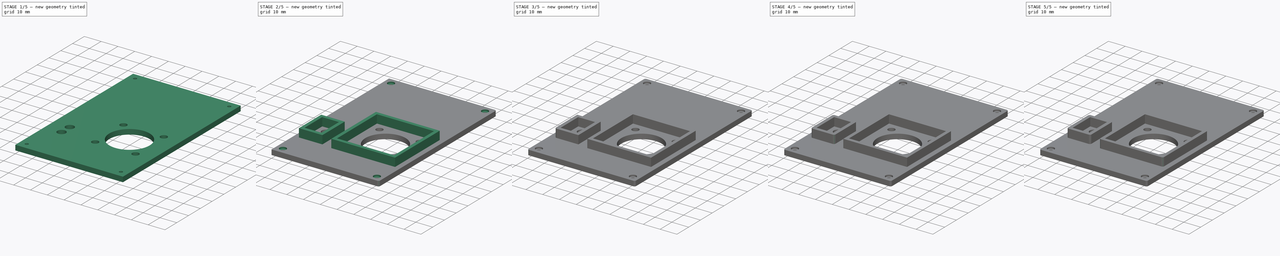
[diagram: build sequence overview — one tinted view per stage of 5, left to right]
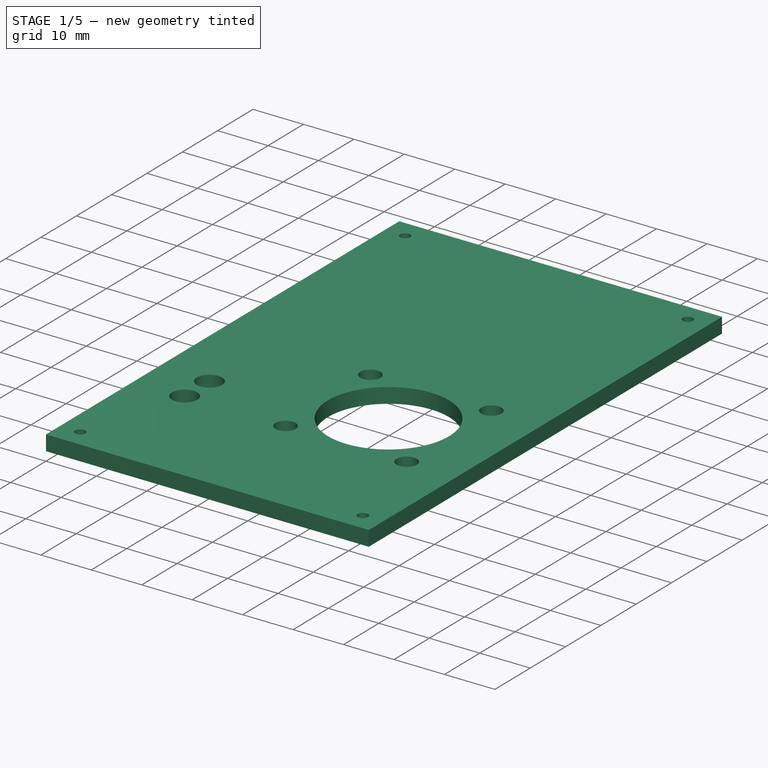
[diagram: stage 1 of 5 — iso view after this stage's code; geometry added in this stage tinted green]
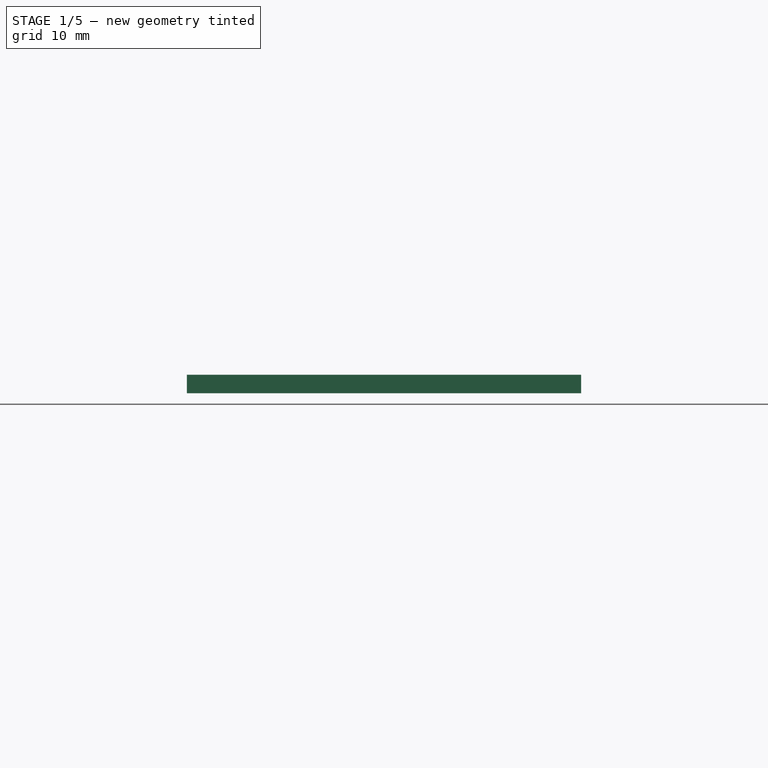
[diagram: stage 1 of 5 — front view after this stage's code; geometry added in this stage tinted green]
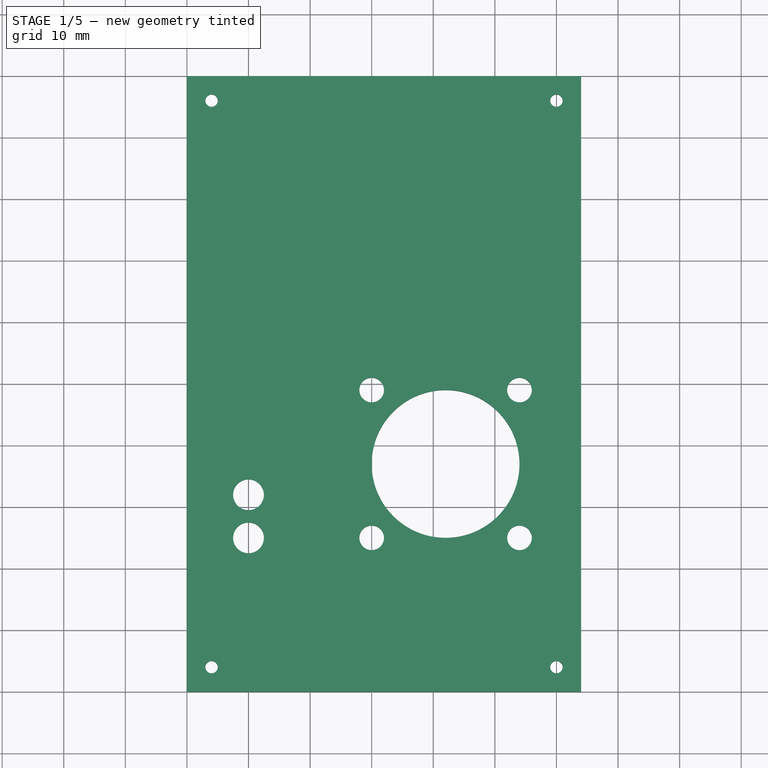
[diagram: stage 1 of 5 — top view after this stage's code; geometry added in this stage tinted green]
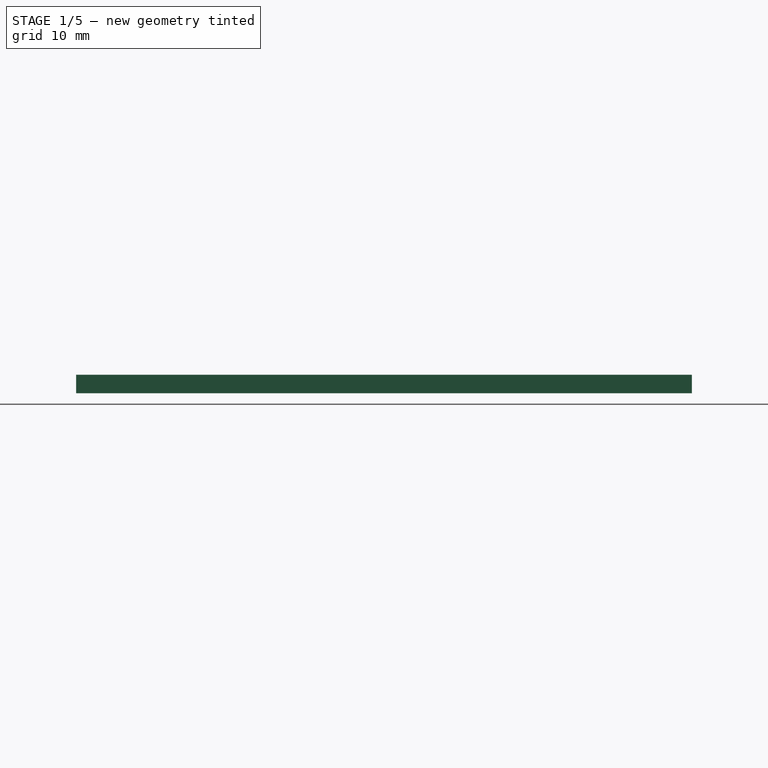
[diagram: stage 1 of 5 — right view after this stage's code; geometry added in this stage tinted green]
FCSTD DOCUMENT  (FreeCAD 0.16R6706 (Git))
Label: iROB-EA_Caja_Adaptador_Tapa_DEBUG
License: All rights reserved
LicenseURL: http://en.wikipedia.org/wiki/All_rights_reserved
objects: PartDesign::Fillet×12, Sketcher::SketchObject×5, PartDesign::Pocket×3, PartDesign::Pad×2
note: 27 computed .brp shape members not serialized (recipe doc carries the construction recipe); baked Part::Feature solids carry a one-line shape summary decoded from their .brp

FEATURE [Sketcher::SketchObject] Sketch  label="Base"
  sketch-geometry (4):
    g0: LineSegment StartX=0 StartY=100 StartZ=0 EndX=64 EndY=100 EndZ=0
    g1: LineSegment StartX=64 StartY=100 StartZ=0 EndX=64 EndY=0 EndZ=0
    g2: LineSegment StartX=64 StartY=0 StartZ=0 EndX=0 EndY=0 EndZ=0
    g3: LineSegment StartX=0 StartY=0 StartZ=0 EndX=0 EndY=100 EndZ=0
  constraints (11):
    c: Coincident(g0,g1)
    c: Coincident(g1,g2)
    c: Coincident(g2,g3)
    c: Coincident(g3,g0)
    c: Horizontal(g0)
    c: Horizontal(g2)
    c: Vertical(g1)
    c: Vertical(g3)
    c: Coincident(g-1,g2)
    c: DistanceX(g2,g2) = 64
    c: DistanceY(g3,g3) = 100
FEATURE [PartDesign::Pad] Pad
  Length = 3
  Length2 = 100
  Sketch = -> Sketch
  Type = 0
FEATURE [Sketcher::SketchObject] Sketch001  label="Tornillos"
  Placement = pos=(0,0,3) rot=(0,0,1;0rad)
  Support = -> Pad [Face6]
  sketch-geometry (4):
    g0: Circle CenterX=4 CenterY=96 CenterZ=0 NormalX=0 NormalY=0 NormalZ=1 Radius=1
    g1: Circle CenterX=60 CenterY=96 CenterZ=0 NormalX=0 NormalY=0 NormalZ=1 Radius=1
    g2: Circle CenterX=4 CenterY=4 CenterZ=0 NormalX=0 NormalY=0 NormalZ=1 Radius=1
    g3: Circle CenterX=60 CenterY=4 CenterZ=0 NormalX=0 NormalY=0 NormalZ=1 Radius=1
  constraints (12):
    c: Radius(g0) = 1
    c: Radius(g1) = 1
    c: DistanceY(g1,g0) = 0
    c: DistanceX(g0,g1) = 56
    c: Radius(g2) = 1
    c: Radius(g3) = 1
    c: DistanceY(g2,g3) = 0
    c: DistanceX(g2,g0) = 0
    c: DistanceX(g3,g1) = 0
    c: DistanceY(g2,g0) = 92
    c: DistanceX(g-1,g2) = 4
    c: DistanceY(g-1,g2) = 4
FEATURE [PartDesign::Pocket] Pocket
  Length = 5
  Sketch = -> Sketch001
  Type = 0
FEATURE [Sketcher::SketchObject] Sketch002  label="Leds_Ventilador"
  Placement = pos=(0,0,3) rot=(0,0,1;0rad)
  Support = -> Pocket [Face5]
  sketch-geometry (7):
    g0: Circle CenterX=30 CenterY=49 CenterZ=0 NormalX=0 NormalY=0 NormalZ=1 Radius=2
    g1: Circle CenterX=54 CenterY=49 CenterZ=0 NormalX=0 NormalY=0 NormalZ=1 Radius=2
    g2: Circle CenterX=30 CenterY=25 CenterZ=0 NormalX=0 NormalY=0 NormalZ=1 Radius=2
    g3: Circle CenterX=54 CenterY=25 CenterZ=0 NormalX=0 NormalY=0 NormalZ=1 Radius=2
    g4: Circle CenterX=10 CenterY=32 CenterZ=0 NormalX=0 NormalY=0 NormalZ=1 Radius=2.5
    g5: Circle CenterX=10 CenterY=25 CenterZ=0 NormalX=0 NormalY=0 NormalZ=1 Radius=2.5
    g6: Circle CenterX=42 CenterY=37 CenterZ=0 NormalX=0 NormalY=0 NormalZ=1 Radius=12
  constraints (21):
    c: Radius(g0) = 2
    c: Radius(g1) = 2
    c: DistanceY(g0,g1) = 0
    c: DistanceX(g0,g1) = 24
    c: Radius(g2) = 2
    c: DistanceX(g0,g2) = 0
    c: DistanceY(g2,g0) = 24
    c: Radius(g3) = 2
    c: DistanceY(g2,g3) = 0
    c: DistanceX(g1,g3) = 0
    c: DistanceX(g-1,g2) = 30
    c: DistanceY(g-1,g2) = 25
    c: Radius(g4) = 2.5
    c: Radius(g5) = 2.5
    c: DistanceY(g5,g4) = 7
    c: DistanceY(g-1,g5) = 25
    c: DistanceX(g4,g5) = 0
    c: DistanceX(g5,g-1) = -10
    c: Radius(g6) = 12
    c: DistanceY(g-1,g6) = 37
    c: DistanceX(g6,g-1) = -42
FEATURE [PartDesign::Pocket] Pocket001
  Length = 5
  Sketch = -> Sketch002
  Type = 0
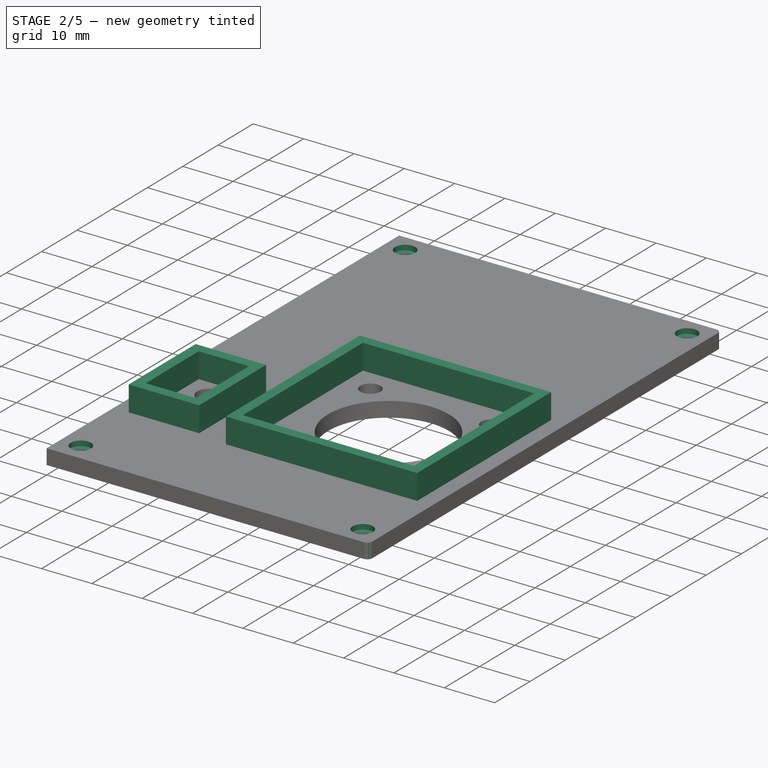
[diagram: stage 2 of 5 — iso view after this stage's code; geometry added in this stage tinted green]
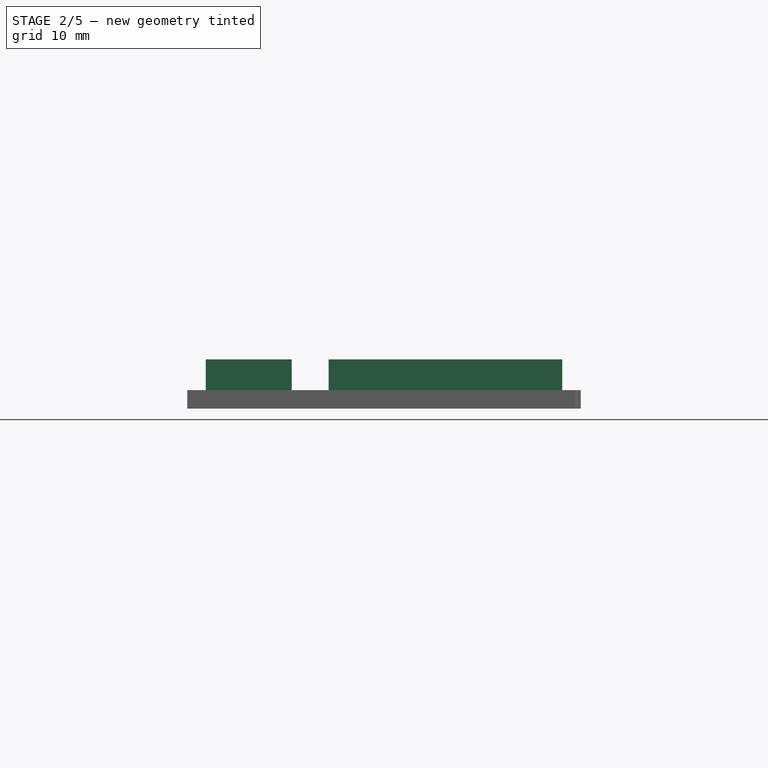
[diagram: stage 2 of 5 — front view after this stage's code; geometry added in this stage tinted green]
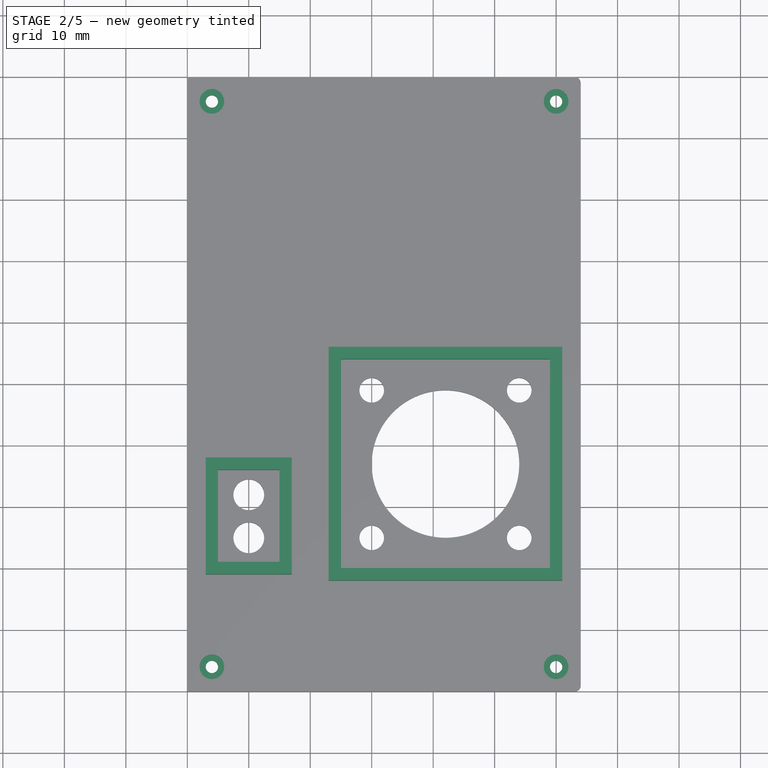
[diagram: stage 2 of 5 — top view after this stage's code; geometry added in this stage tinted green]
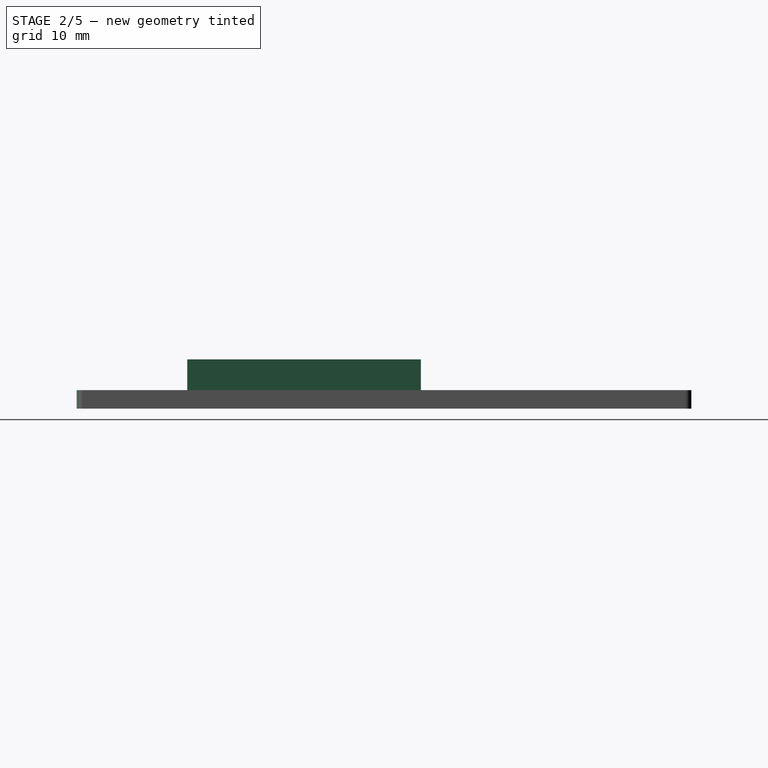
[diagram: stage 2 of 5 — right view after this stage's code; geometry added in this stage tinted green]
FEATURE [Sketcher::SketchObject] Sketch003  label="Leds_Ventilador_Protectores"
  Placement = pos=(0,0,3) rot=(0,0,1;0rad)
  Support = -> Pocket001 [Face5]
  sketch-geometry (16):
    g0: LineSegment StartX=25 StartY=54 StartZ=0 EndX=59 EndY=54 EndZ=0
    g1: LineSegment StartX=59 StartY=54 StartZ=0 EndX=59 EndY=20 EndZ=0
    g2: LineSegment StartX=59 StartY=20 StartZ=0 EndX=25 EndY=20 EndZ=0
    g3: LineSegment StartX=25 StartY=20 StartZ=0 EndX=25 EndY=54 EndZ=0
    g4: LineSegment StartX=23 StartY=56 StartZ=0 EndX=61 EndY=56 EndZ=0
    g5: LineSegment StartX=61 StartY=56 StartZ=0 EndX=61 EndY=18 EndZ=0
    g6: LineSegment StartX=61 StartY=18 StartZ=0 EndX=23 EndY=18 EndZ=0
    g7: LineSegment StartX=23 StartY=18 StartZ=0 EndX=23 EndY=56 EndZ=0
    g8: LineSegment StartX=5 StartY=36 StartZ=0 EndX=15 EndY=36 EndZ=0
    g9: LineSegment StartX=15 StartY=36 StartZ=0 EndX=15 EndY=21 EndZ=0
    g10: LineSegment StartX=15 StartY=21 StartZ=0 EndX=5 EndY=21 EndZ=0
    g11: LineSegment StartX=5 StartY=21 StartZ=0 EndX=5 EndY=36 EndZ=0
    g12: LineSegment StartX=3 StartY=38 StartZ=0 EndX=17 EndY=38 EndZ=0
    g13: LineSegment StartX=17 StartY=38 StartZ=0 EndX=17 EndY=19 EndZ=0
    g14: LineSegment StartX=17 StartY=19 StartZ=0 EndX=3 EndY=19 EndZ=0
    g15: LineSegment StartX=3 StartY=19 StartZ=0 EndX=3 EndY=38 EndZ=0
  constraints (48):
    c: Coincident(g0,g1)
    c: Coincident(g1,g2)
    c: Coincident(g2,g3)
    c: Coincident(g3,g0)
    c: Horizontal(g0)
    c: Horizontal(g2)
    c: Vertical(g1)
    c: Vertical(g3)
    c: DistanceX(g0,g0) = 34
    c: DistanceY(g3,g3) = 34
    c: Coincident(g4,g5)
    c: Coincident(g5,g6)
    c: Coincident(g6,g7)
    c: Coincident(g7,g4)
    c: Horizontal(g4)
    c: Horizontal(g6)
    c: Vertical(g5)
    c: Vertical(g7)
    c: DistanceX(g4,g4) = 38
    c: DistanceY(g5,g5) = 38
    c: DistanceX(g2,g6) = -2
    c: DistanceY(g2,g6) = -2
    c: DistanceX(g-1,g6) = 23
    c: DistanceY(g-1,g6) = 18
    c: Coincident(g8,g9)
    c: Coincident(g9,g10)
    c: Coincident(g10,g11)
    c: Coincident(g11,g8)
    c: Horizontal(g8)
    c: Horizontal(g10)
    c: Vertical(g9)
    c: Vertical(g11)
    c: DistanceX(g8,g8) = 10
    c: DistanceY(g9,g9) = 15
    c: Coincident(g12,g13)
    c: Coincident(g13,g14)
    c: Coincident(g14,g15)
    c: Coincident(g15,g12)
    c: Horizontal(g12)
    c: Horizontal(g14)
    c: Vertical(g13)
    c: Vertical(g15)
    c: DistanceX(g12,g12) = 14
    c: DistanceY(g15,g15) = 19
    c: DistanceX(g14,g10) = 2
    c: DistanceY(g14,g10) = 2
    c: DistanceX(g14,g-1) = -3
    c: DistanceY(g-1,g14) = 19
FEATURE [PartDesign::Pad] Pad001
  Length = 5
  Length2 = 100
  Sketch = -> Sketch003
  Type = 0
FEATURE [Sketcher::SketchObject] Sketch004  label="Tornillos_Protector"
  Placement = pos=(0,0,3) rot=(0,0,1;0rad)
  Support = -> Pad001 [Face5]
  sketch-geometry (4):
    g0: Circle CenterX=4 CenterY=96 CenterZ=0 NormalX=0 NormalY=0 NormalZ=1 Radius=2
    g1: Circle CenterX=60 CenterY=96 CenterZ=0 NormalX=0 NormalY=0 NormalZ=1 Radius=2
    g2: Circle CenterX=4 CenterY=4 CenterZ=0 NormalX=0 NormalY=0 NormalZ=1 Radius=2
    g3: Circle CenterX=60 CenterY=4 CenterZ=0 NormalX=0 NormalY=0 NormalZ=1 Radius=2
  constraints (12):
    c: Radius(g0) = 2
    c: Radius(g1) = 2
    c: DistanceY(g1,g0) = 0
    c: DistanceX(g0,g1) = 56
    c: Radius(g3) = 2
    c: Radius(g2) = 2
    c: DistanceX(g2,g0) = 0
    c: DistanceY(g2,g0) = 92
    c: DistanceY(g2,g3) = 0
    c: DistanceX(g3,g1) = 0
    c: DistanceX(g-1,g2) = 4
    c: DistanceY(g-1,g2) = 4
FEATURE [PartDesign::Pocket] Pocket002
  Length = 1
  Sketch = -> Sketch004
  Type = 0
FEATURE [PartDesign::Fillet] Fillet  label="Fillet000"
  Base = -> Pocket002 [Edge8]
  Radius = 1
FEATURE [PartDesign::Fillet] Fillet001
  Base = -> Fillet [Edge3]
  Radius = 1
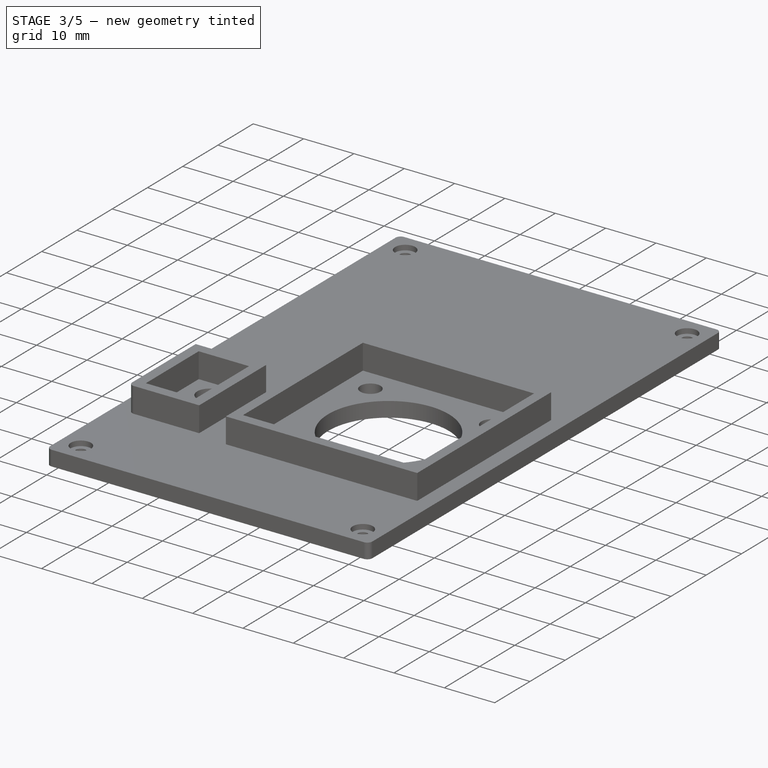
[diagram: stage 3 of 5 — iso view after this stage's code; geometry added in this stage tinted green]
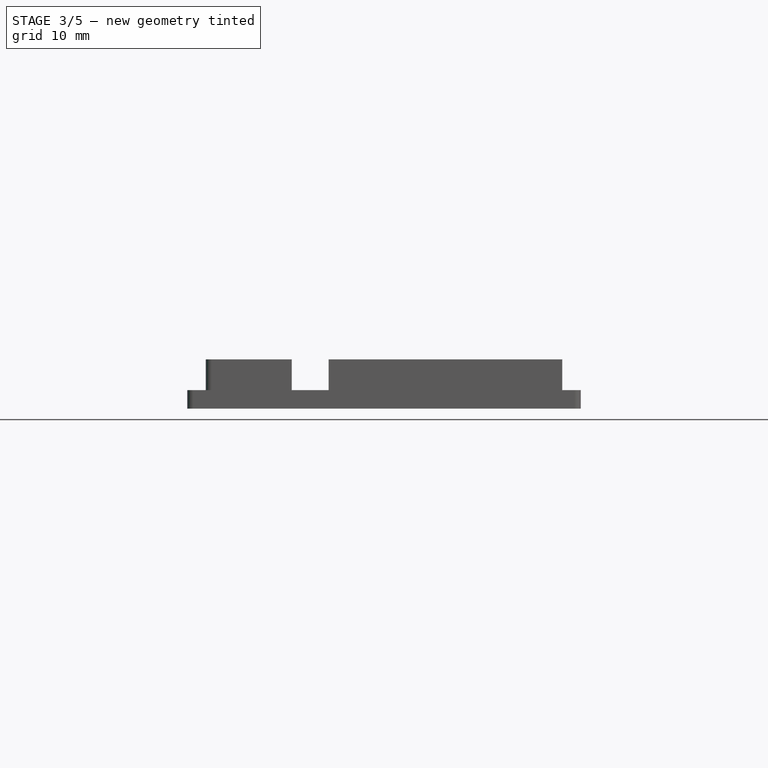
[diagram: stage 3 of 5 — front view after this stage's code; geometry added in this stage tinted green]
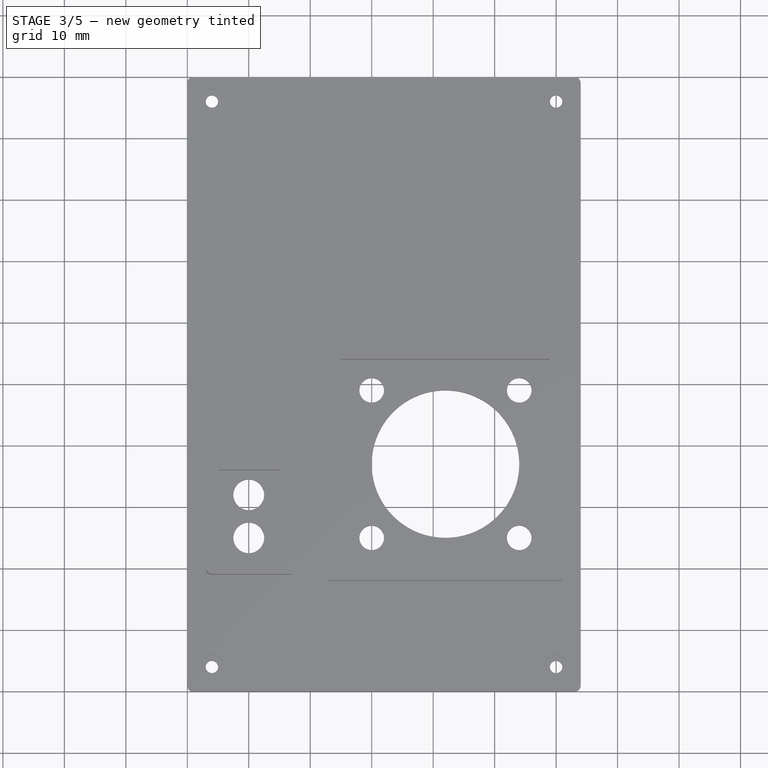
[diagram: stage 3 of 5 — top view after this stage's code; geometry added in this stage tinted green]
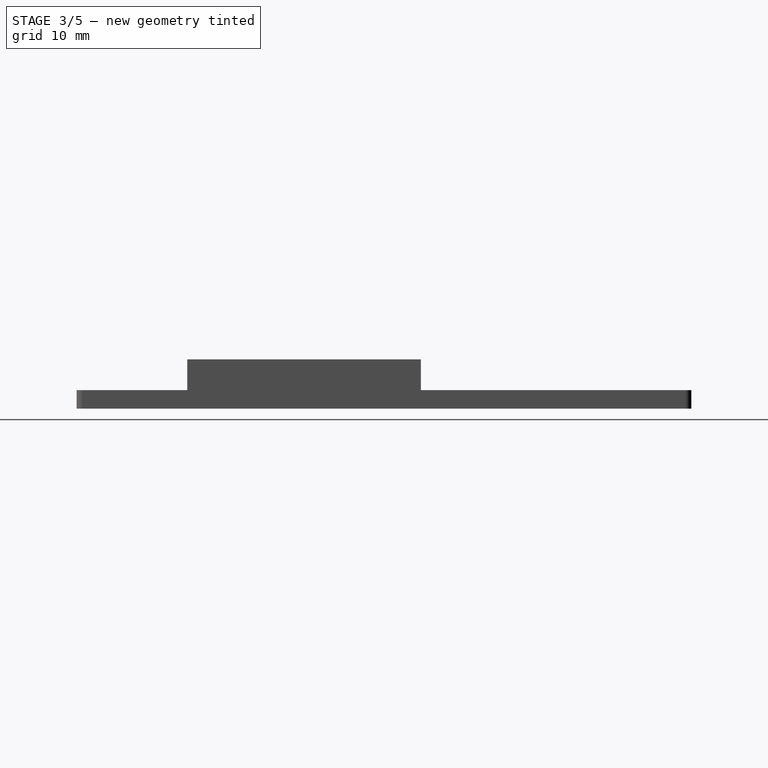
[diagram: stage 3 of 5 — right view after this stage's code; geometry added in this stage tinted green]
FEATURE [PartDesign::Fillet] Fillet002
  Base = -> Fillet001 [Edge40]
  Radius = 1
FEATURE [PartDesign::Fillet] Fillet003
  Base = -> Fillet002 [Edge26]
  Radius = 1
FEATURE [PartDesign::Fillet] Fillet004
  Base = -> Fillet003 [Edge95]
  Radius = 1
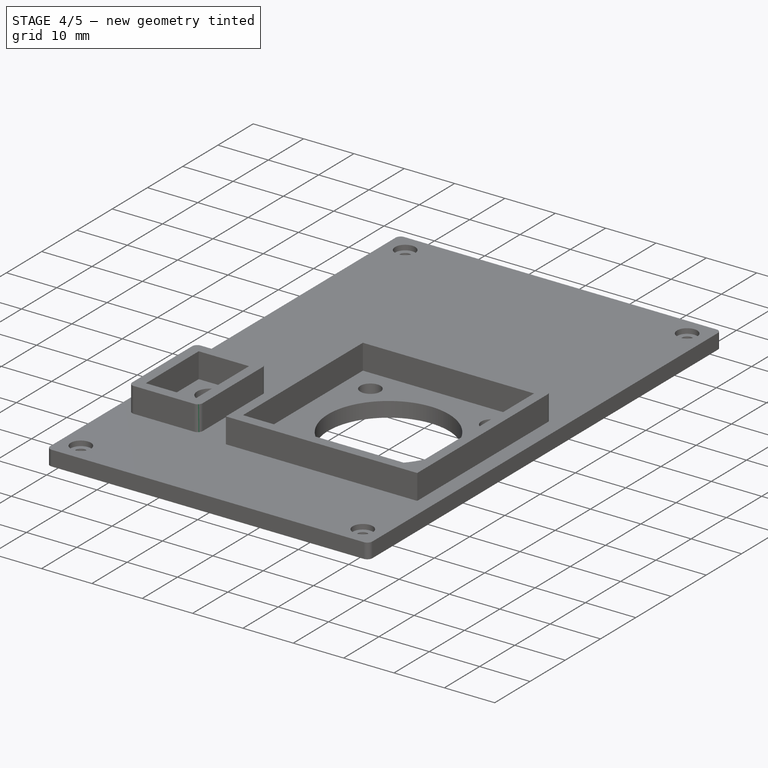
[diagram: stage 4 of 5 — iso view after this stage's code; geometry added in this stage tinted green]
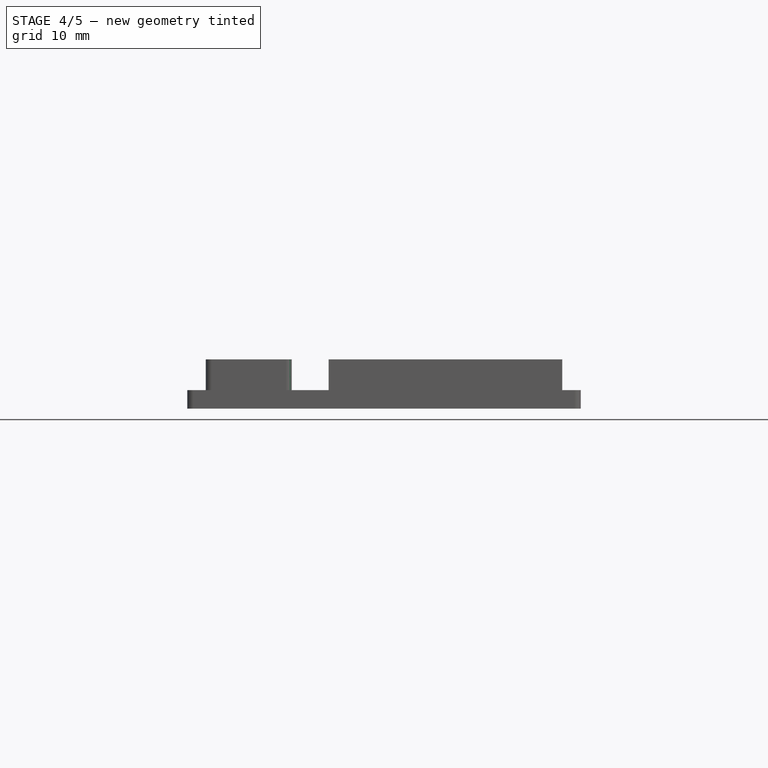
[diagram: stage 4 of 5 — front view after this stage's code; geometry added in this stage tinted green]
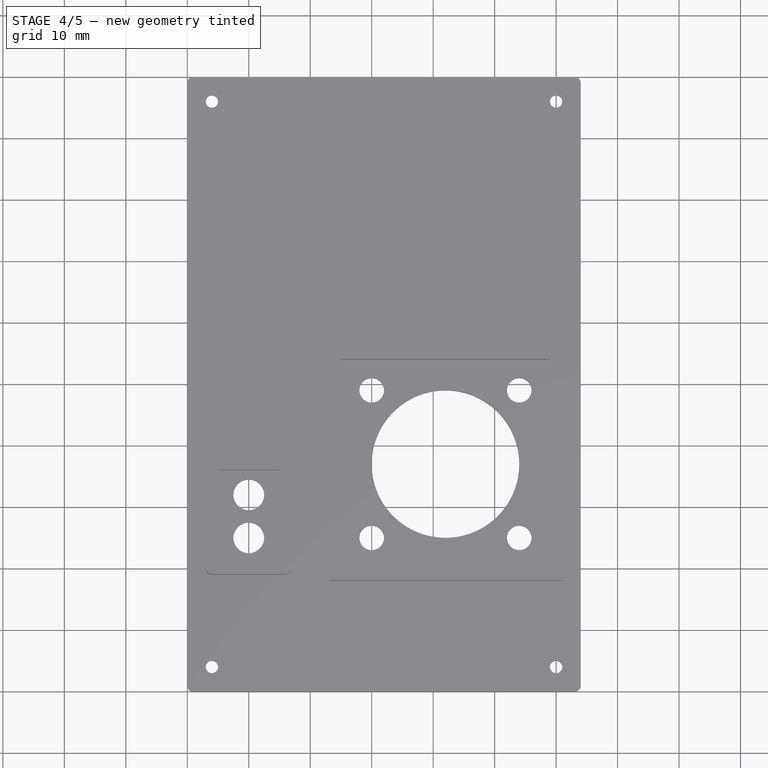
[diagram: stage 4 of 5 — top view after this stage's code; geometry added in this stage tinted green]
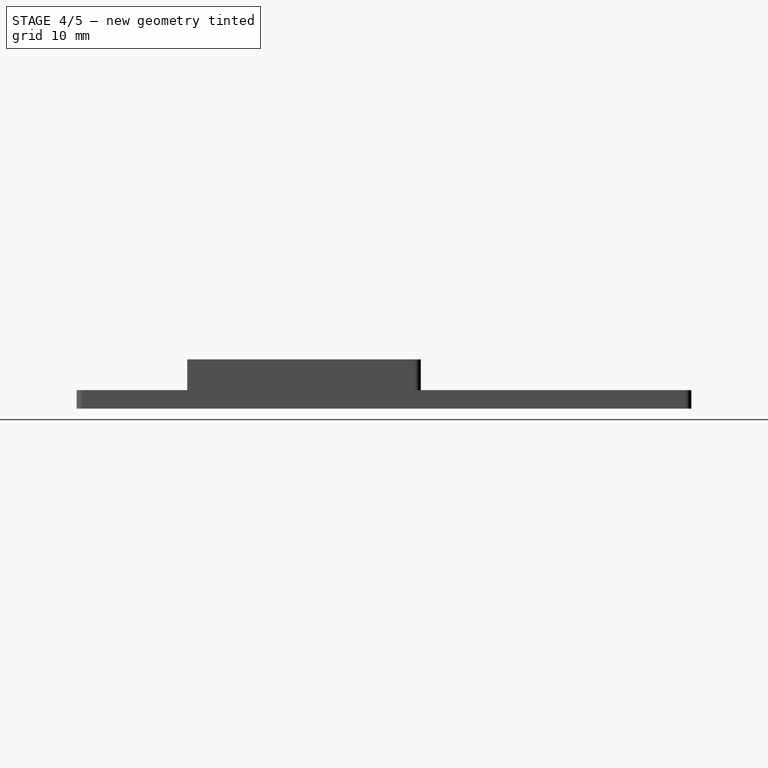
[diagram: stage 4 of 5 — right view after this stage's code; geometry added in this stage tinted green]
FEATURE [PartDesign::Fillet] Fillet005
  Base = -> Fillet004 [Edge23]
  Radius = 1
FEATURE [PartDesign::Fillet] Fillet006
  Base = -> Fillet005 [Edge30]
  Radius = 1
FEATURE [PartDesign::Fillet] Fillet007
  Base = -> Fillet006 [Edge31]
  Radius = 1
FEATURE [PartDesign::Fillet] Fillet008
  Base = -> Fillet007 [Edge57]
  Radius = 1
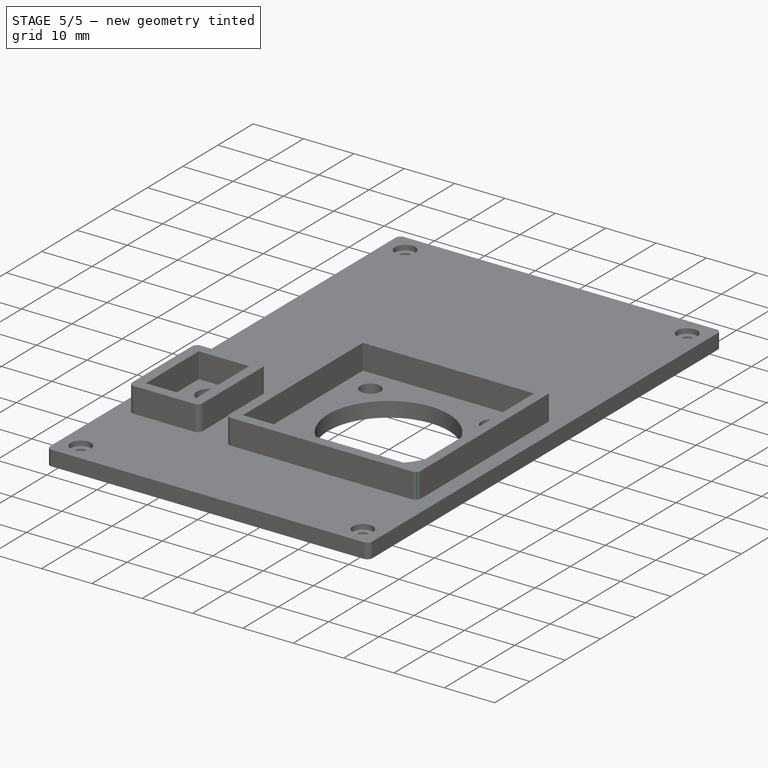
[diagram: stage 5 of 5 — iso view after this stage's code; geometry added in this stage tinted green]
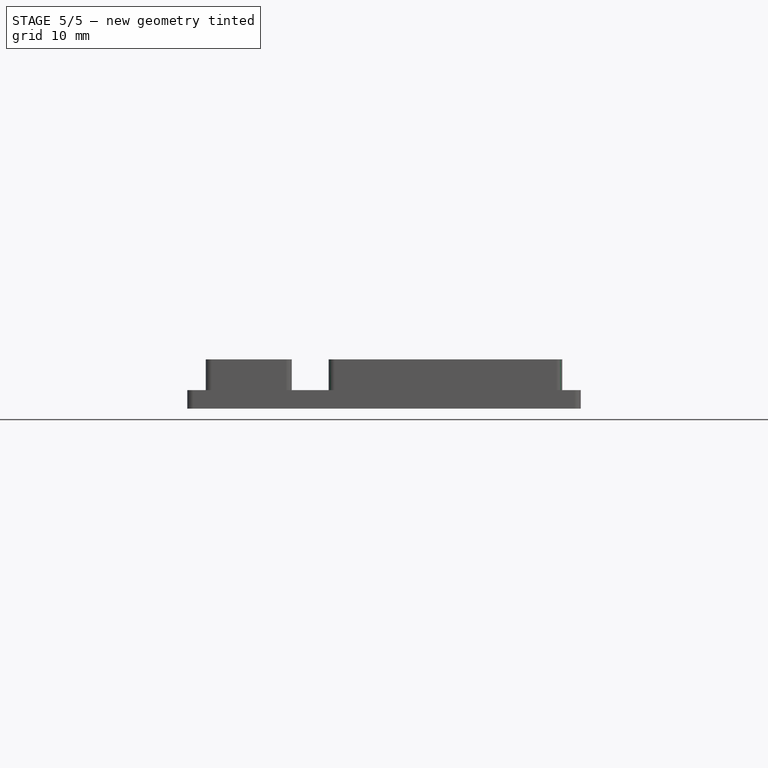
[diagram: stage 5 of 5 — front view after this stage's code; geometry added in this stage tinted green]
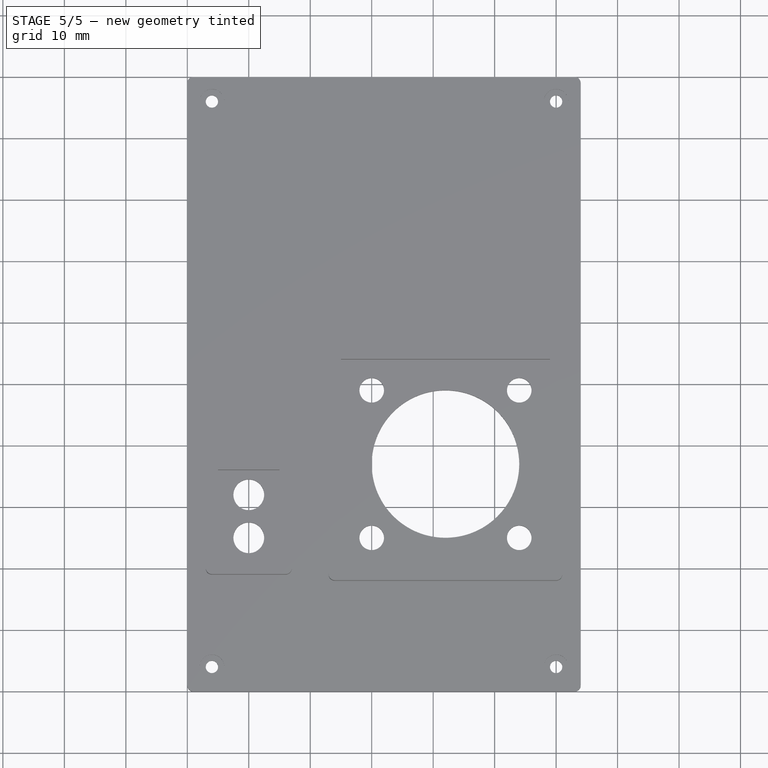
[diagram: stage 5 of 5 — top view after this stage's code; geometry added in this stage tinted green]
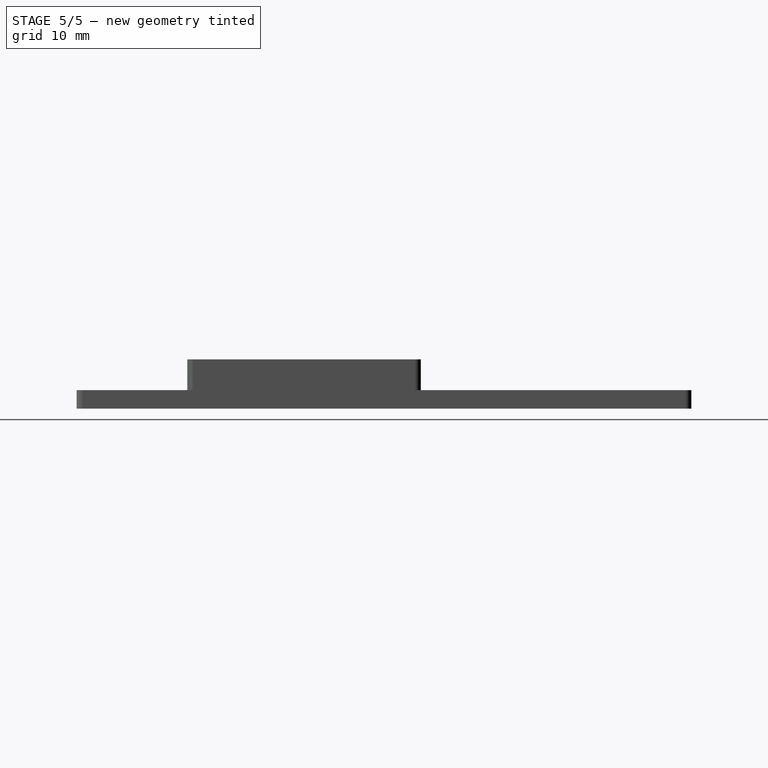
[diagram: stage 5 of 5 — right view after this stage's code; geometry added in this stage tinted green]
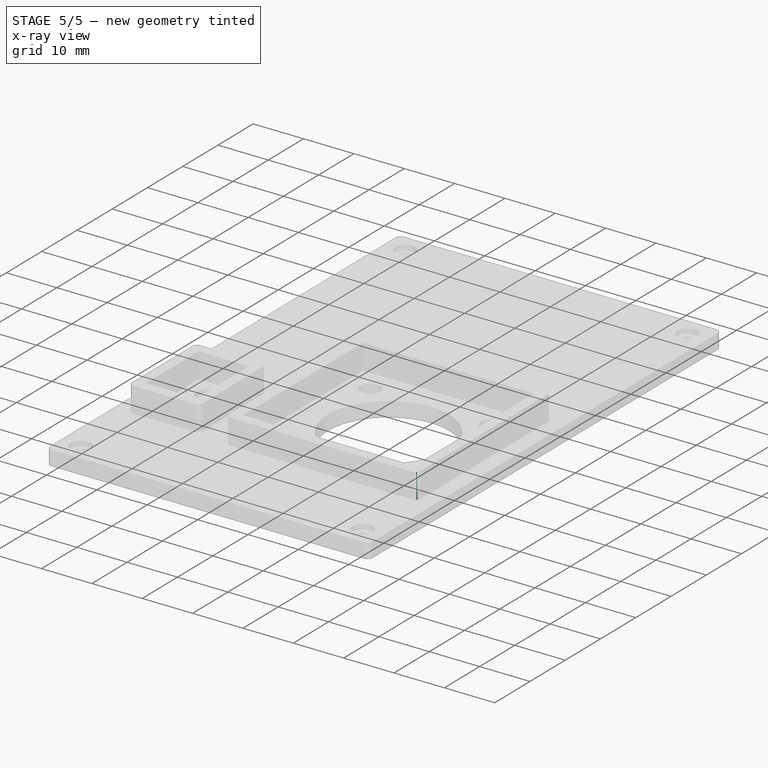
[diagram: stage 5 of 5 — x-ray composite at the iso view; earlier geometry ghosted, this stage's added geometry solid]
FEATURE [PartDesign::Fillet] Fillet009
  Base = -> Fillet008 [Edge27]
  Radius = 1
FEATURE [PartDesign::Fillet] Fillet010
  Base = -> Fillet009 [Edge34]
  Radius = 1
FEATURE [PartDesign::Fillet] Fillet011
  Base = -> Fillet010 [Edge35]
  Radius = 1
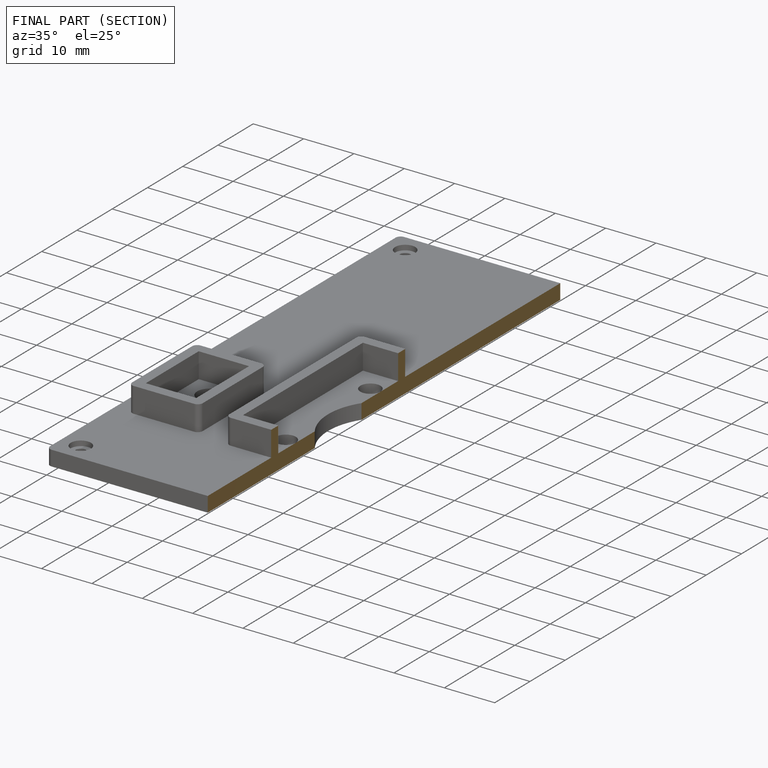
[diagram: finished part — half-section view (interior)]
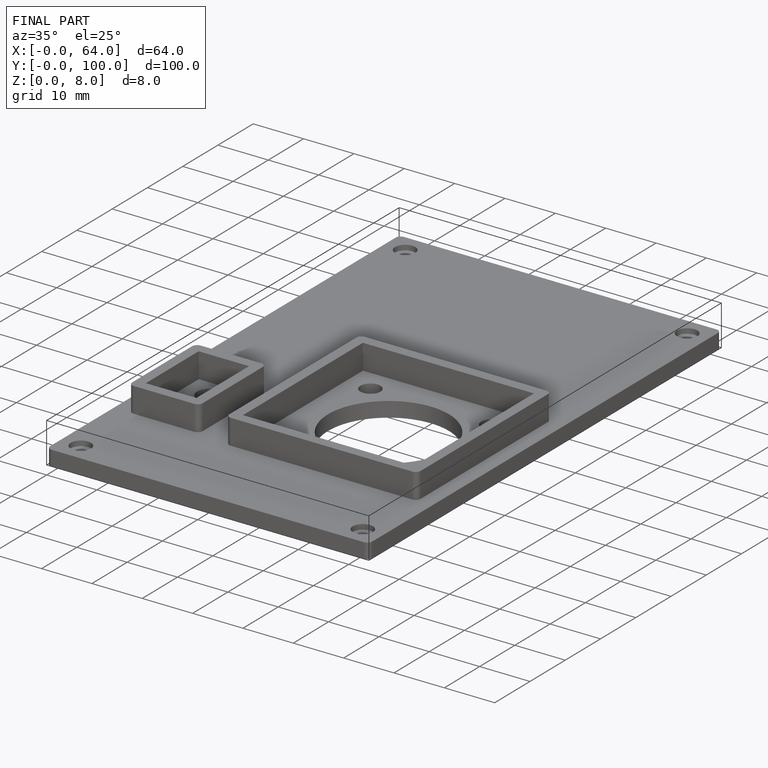
[diagram: finished part — iso view with bounding-box wireframe]
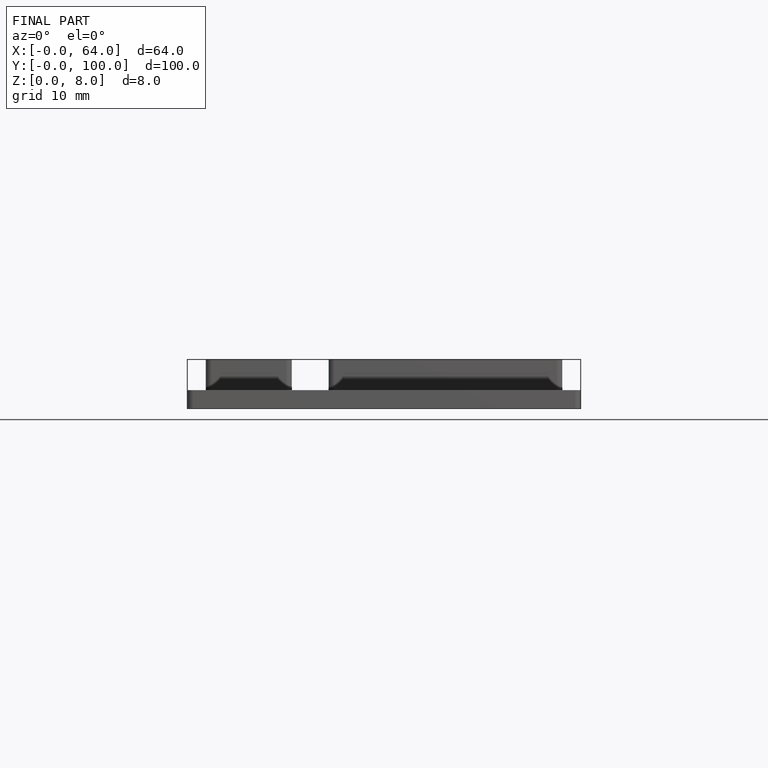
[diagram: finished part — front view with bounding-box wireframe]
